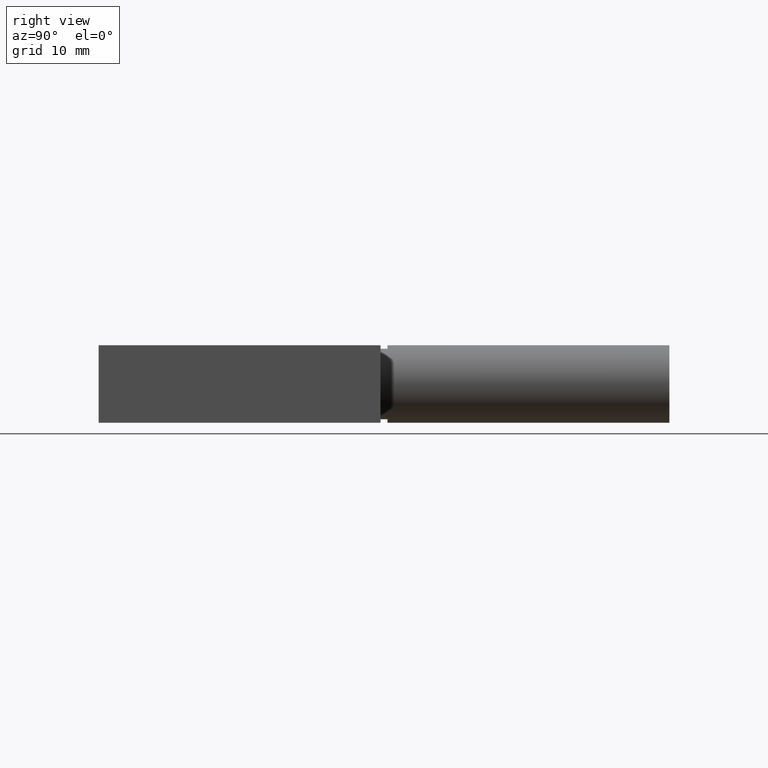
[diagram: clean part render]
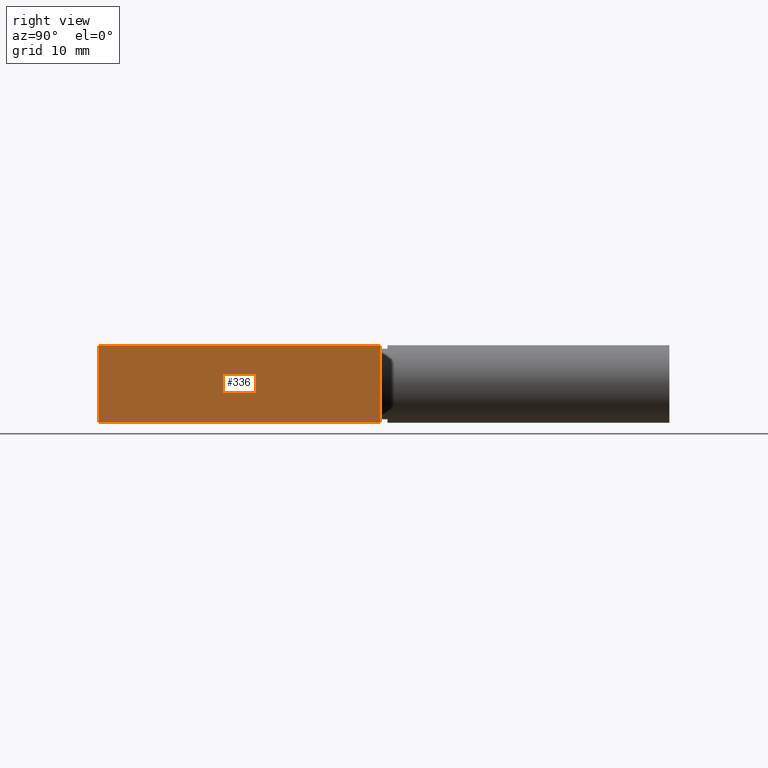
[diagram: same view with one face highlighted and labeled with its STEP entity id]
A machine part, right view. The second image highlights one B-rep face of the part: STEP entity #336.
In plain terms, the highlighted planar face has unit normal (-1, 0, 0).
Its self-contained STEP definition (entity closure, byte-faithful):
#54=PLANE('',#459);
#67=FACE_OUTER_BOUND('',#94,.T.);
#94=EDGE_LOOP('',(#267,#268,#269,#270));
#120=LINE('',#635,#140);
#123=LINE('',#644,#143);
#125=LINE('',#648,#145);
#126=LINE('',#654,#146);
#140=VECTOR('',#516,10.);
#143=VECTOR('',#525,11.9999759999521);
#145=VECTOR('',#529,10.);
#146=VECTOR('',#536,11.9999759999521);
#182=VERTEX_POINT('',#632);
#183=VERTEX_POINT('',#634);
#186=VERTEX_POINT('',#642);
#187=VERTEX_POINT('',#646);
#210=EDGE_CURVE('',#183,#182,#120,.T.);
#215=EDGE_CURVE('',#182,#186,#123,.T.);
#217=EDGE_CURVE('',#186,#187,#125,.T.);
#220=EDGE_CURVE('',#183,#187,#126,.T.);
#267=ORIENTED_EDGE('',*,*,#217,.T.);
#268=ORIENTED_EDGE('',*,*,#220,.F.);
#269=ORIENTED_EDGE('',*,*,#210,.T.);
#270=ORIENTED_EDGE('',*,*,#215,.T.);
#336=ADVANCED_FACE('',(#67),#54,.F.);
#459=AXIS2_PLACEMENT_3D('',#653,#534,#535);
#516=DIRECTION('',(0.,-1.,0.));
#525=DIRECTION('',(0.,0.,-1.));
#529=DIRECTION('',(0.,1.,0.));
#534=DIRECTION('center_axis',(-1.,0.,0.));
#535=DIRECTION('ref_axis',(0.,0.,1.));
#536=DIRECTION('',(0.,0.,-1.));
#632=CARTESIAN_POINT('',(40.499896999886,32.4998549997101,11.4999759999521));
#634=CARTESIAN_POINT('',(40.499896999886,72.4998549997101,11.4999759999521));
#635=CARTESIAN_POINT('',(40.499896999886,62.4998549997101,11.4999759999521));
#642=CARTESIAN_POINT('',(40.499896999886,32.4998549997101,0.500000000000004));
#644=CARTESIAN_POINT('',(40.499896999886,32.4998549997101,11.9999759999521));
#646=CARTESIAN_POINT('',(40.499896999886,72.4998549997101,0.500000000000004));
#648=CARTESIAN_POINT('',(40.499896999886,62.4998549997101,0.500000000000005));
#653=CARTESIAN_POINT('Origin',(40.499896999886,72.4998549997101,11.9999759999521));
#654=CARTESIAN_POINT('',(40.499896999886,72.4998549997101,11.9999759999521));